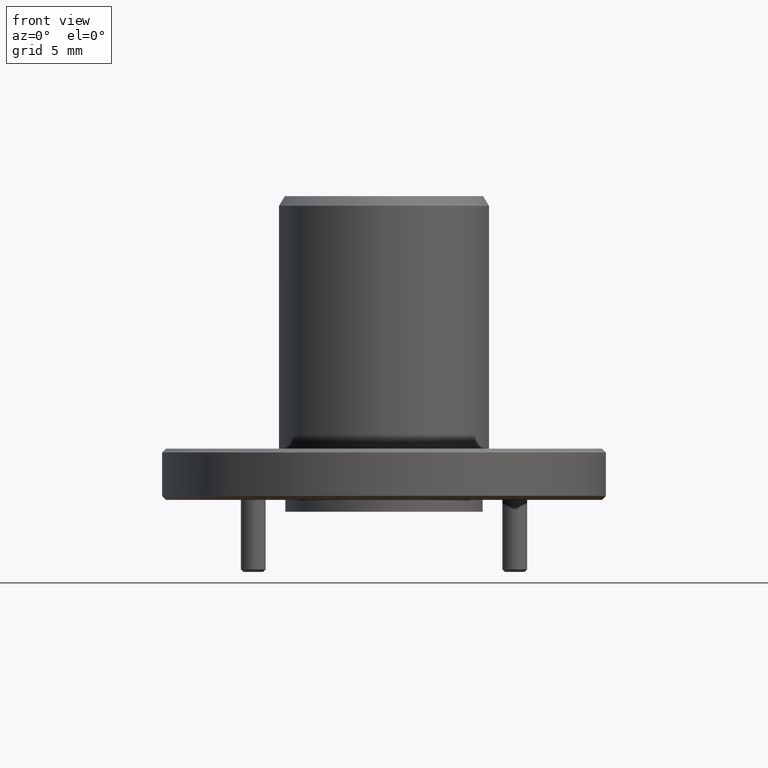
[diagram: clean part render]
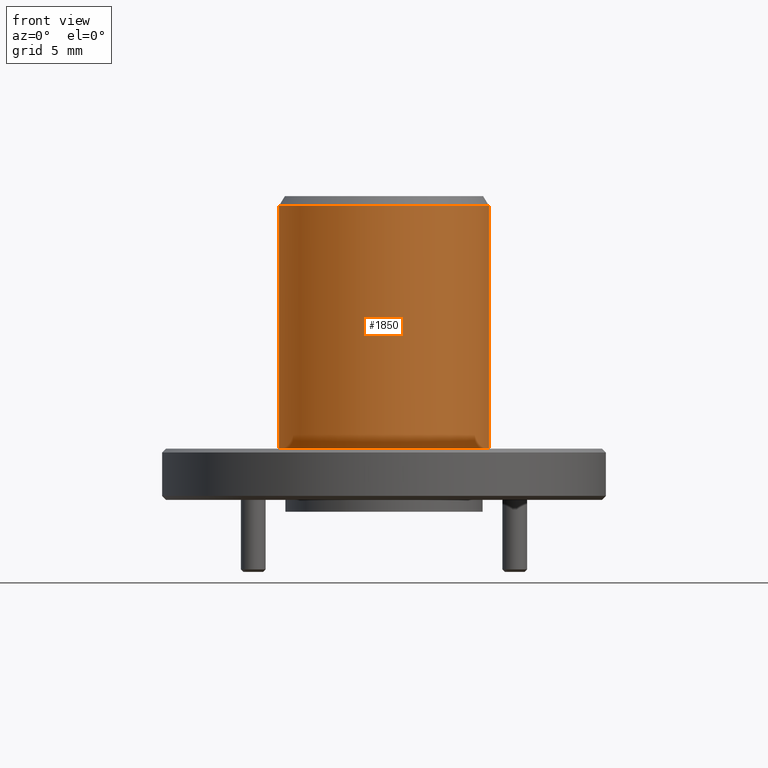
[diagram: same view with one face highlighted and labeled with its STEP entity id]
A machine part, front view. The second image highlights one B-rep face of the part: STEP entity #1850.
In plain terms, the highlighted cylindrical surface (partial cylindrical patch) has radius 6.7606 mm, axis along (-0, -0, 1).
Its self-contained STEP definition (entity closure, byte-faithful):
#13 = VERTEX_POINT ( 'NONE', #931 ) ;
#20 = AXIS2_PLACEMENT_3D ( 'NONE', #26, #1908, #1932 ) ;
#26 = CARTESIAN_POINT ( 'NONE',  ( 0.05127403736761039500, 0.5322466351666983500, 0.4553271406262703900 ) ) ;
#42 = AXIS2_PLACEMENT_3D ( 'NONE', #1071, #246, #1228 ) ;
#124 = ORIENTED_EDGE ( 'NONE', *, *, #1068, .T. ) ;
#189 = EDGE_CURVE ( 'NONE', #1051, #986, #1678, .T. ) ;
#213 = CARTESIAN_POINT ( 'NONE',  ( -0.2148898285359919500, 0.5322466351666983500, 1.071017892616327600 ) ) ;
#246 = DIRECTION ( 'NONE',  ( -0.0000000000000000000, -0.0000000000000000000, 1.000000000000000000 ) ) ;
#442 = CYLINDRICAL_SURFACE ( 'NONE', #42, 0.2661638659036022500 ) ;
#447 = CARTESIAN_POINT ( 'NONE',  ( 0.05127403736761039500, 0.5322466351666983500, 1.071017892616327600 ) ) ;
#464 = EDGE_CURVE ( 'NONE', #1051, #689, #1796, .T. ) ;
#492 = CARTESIAN_POINT ( 'NONE',  ( 0.3174379032712126300, 0.5322466351666983500, 1.071017892616327600 ) ) ;
#689 = VERTEX_POINT ( 'NONE', #213 ) ;
#692 = VECTOR ( 'NONE', #960, 39.37007874015748100 ) ;
#756 = ORIENTED_EDGE ( 'NONE', *, *, #760, .T. ) ;
#760 = EDGE_CURVE ( 'NONE', #986, #13, #1702, .T. ) ;
#931 = CARTESIAN_POINT ( 'NONE',  ( 0.3174379032712126800, 0.5322466351666983500, 1.071017892616327600 ) ) ;
#960 = DIRECTION ( 'NONE',  ( -0.0000000000000000000, -0.0000000000000000000, 1.000000000000000000 ) ) ;
#986 = VERTEX_POINT ( 'NONE', #1525 ) ;
#1004 = EDGE_LOOP ( 'NONE', ( #1354, #1296, #756, #124 ) ) ;
#1051 = VERTEX_POINT ( 'NONE', #2028 ) ;
#1064 = DIRECTION ( 'NONE',  ( -1.000000000000000000, 0.0000000000000000000, 0.0000000000000000000 ) ) ;
#1068 = EDGE_CURVE ( 'NONE', #13, #689, #1325, .T. ) ;
#1071 = CARTESIAN_POINT ( 'NONE',  ( 0.05127403736761039500, 0.5322466351666983500, 1.071017892616327600 ) ) ;
#1093 = FACE_OUTER_BOUND ( 'NONE', #1004, .T. ) ;
#1228 = DIRECTION ( 'NONE',  ( 1.000000000000000000, 0.0000000000000000000, 0.0000000000000000000 ) ) ;
#1267 = CARTESIAN_POINT ( 'NONE',  ( -0.2148898285359918400, 0.5322466351666983500, 1.071017892616327600 ) ) ;
#1296 = ORIENTED_EDGE ( 'NONE', *, *, #189, .T. ) ;
#1297 = DIRECTION ( 'NONE',  ( -0.0000000000000000000, -0.0000000000000000000, 1.000000000000000000 ) ) ;
#1325 = CIRCLE ( 'NONE', #1510, 0.2661638659036022500 ) ;
#1354 = ORIENTED_EDGE ( 'NONE', *, *, #464, .F. ) ;
#1510 = AXIS2_PLACEMENT_3D ( 'NONE', #447, #1555, #1064 ) ;
#1525 = CARTESIAN_POINT ( 'NONE',  ( 0.3174379032712126300, 0.5322466351666983500, 0.4553271406262703900 ) ) ;
#1555 = DIRECTION ( 'NONE',  ( 0.0000000000000000000, 0.0000000000000000000, -1.000000000000000000 ) ) ;
#1678 = CIRCLE ( 'NONE', #20, 0.2661638659036022500 ) ;
#1702 = LINE ( 'NONE', #492, #1992 ) ;
#1796 = LINE ( 'NONE', #1267, #692 ) ;
#1850 = ADVANCED_FACE ( 'NONE', ( #1093 ), #442, .T. ) ;
#1908 = DIRECTION ( 'NONE',  ( -0.0000000000000000000, -0.0000000000000000000, 1.000000000000000000 ) ) ;
#1932 = DIRECTION ( 'NONE',  ( -1.000000000000000000, 0.0000000000000000000, 0.0000000000000000000 ) ) ;
#1992 = VECTOR ( 'NONE', #1297, 39.37007874015748100 ) ;
#2028 = CARTESIAN_POINT ( 'NONE',  ( -0.2148898285359918400, 0.5322466351666983500, 0.4553271406262703900 ) ) ;